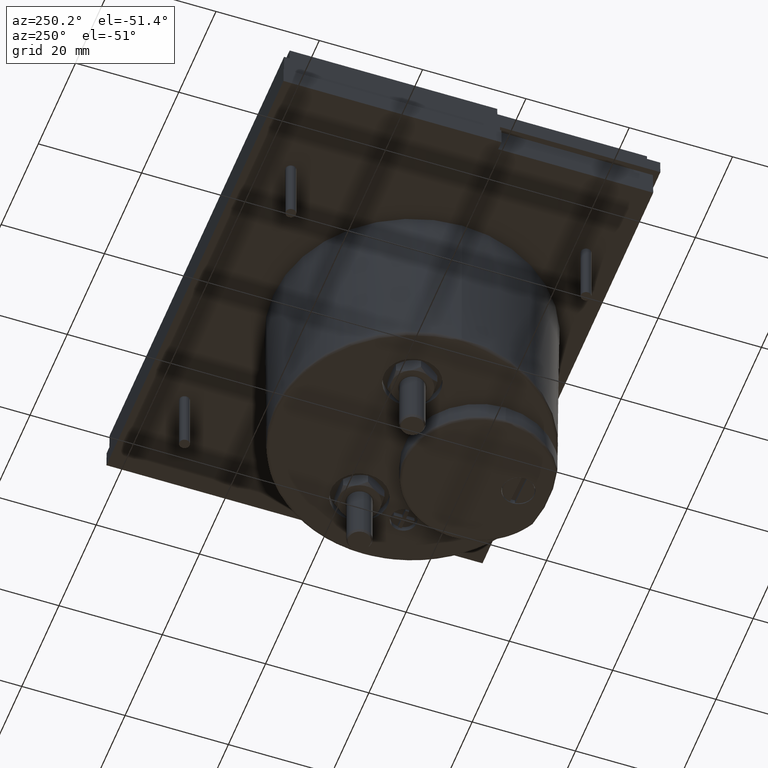
[diagram: clean part render]
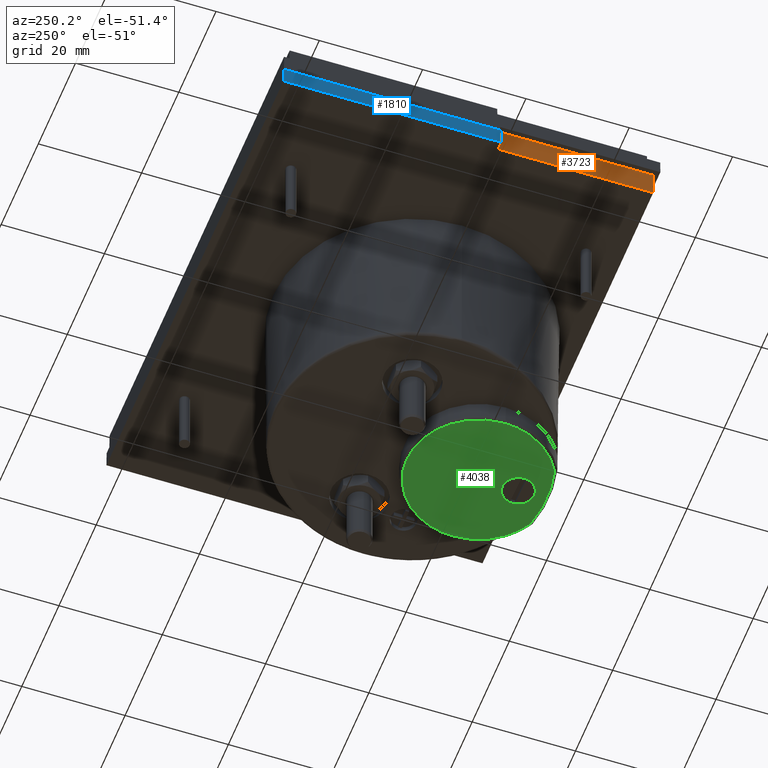
[diagram: same view with three faces highlighted in distinct colors, each labeled with its STEP entity id]
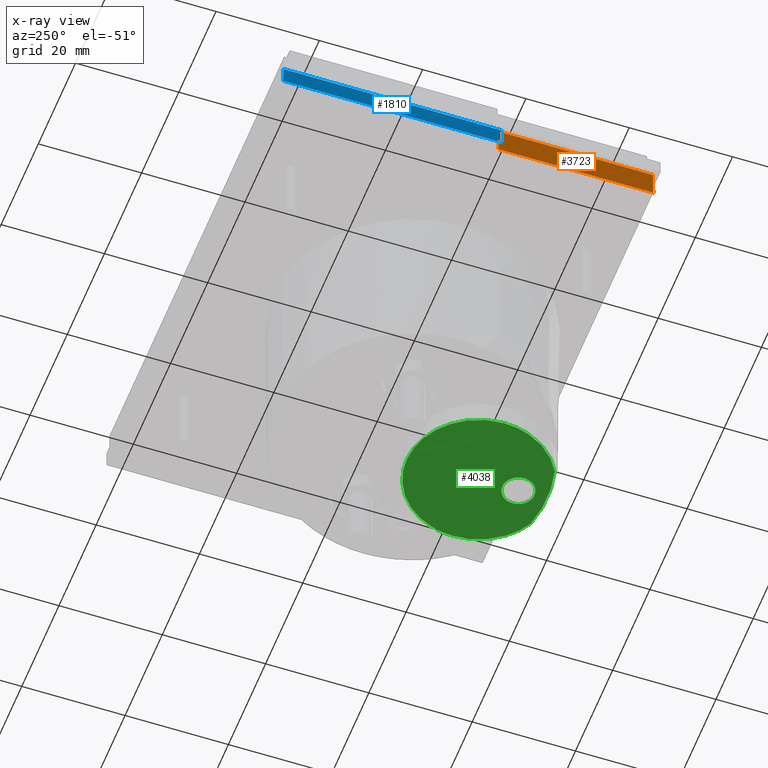
[diagram: x-ray of the same camera — body ghosted, the three highlighted faces saturated]
A machine part, auxiliary view with three faces highlighted in distinct colors.
The next image is the same camera in x-ray (body ghosted, the three faces saturated) — at least one of them is partly hidden behind the body in this view.
Their STEP definitions:

[orange] entity #3723 — the highlighted planar face has unit normal (-1, 0, 0.0087).
#330 = ORIENTED_EDGE ( 'NONE', *, *, #2643, .T. ) ;
#435 = CARTESIAN_POINT ( 'NONE',  ( -1.234437305360864379, 0.3109463270555614112, 0.3716535433070870531 ) ) ;
#437 = CARTESIAN_POINT ( 'NONE',  ( -1.236220472440944906, -0.8719392022292440370, 0.1673228346456696880 ) ) ;
#581 = ORIENTED_EDGE ( 'NONE', *, *, #2721, .F. ) ;
#834 = ORIENTED_EDGE ( 'NONE', *, *, #2468, .T. ) ;
#843 = VECTOR ( 'NONE', #3497, 39.37007874015748143 ) ;
#1020 = VECTOR ( 'NONE', #3232, 39.37007874015748854 ) ;
#1339 = EDGE_CURVE ( 'NONE', #1453, #1769, #3308, .T. ) ;
#1453 = VERTEX_POINT ( 'NONE', #2942 ) ;
#1742 = DIRECTION ( 'NONE',  ( 0.000000000000000000, 1.000000000000000000, -0.000000000000000000 ) ) ;
#1761 = VERTEX_POINT ( 'NONE', #2123 ) ;
#1769 = VERTEX_POINT ( 'NONE', #3302 ) ;
#1962 = CARTESIAN_POINT ( 'NONE',  ( -1.236220472440944906, -0.8719392022292440370, 0.1673228346456696047 ) ) ;
#2035 = DIRECTION ( 'NONE',  ( -0.9999619230641713097, 0.000000000000000000, 0.008726535498373936411 ) ) ;
#2123 = CARTESIAN_POINT ( 'NONE',  ( -1.236220472440944906, 0.3091631599754814941, 0.1673228346456695770 ) ) ;
#2438 = ORIENTED_EDGE ( 'NONE', *, *, #1339, .T. ) ;
#2468 = EDGE_CURVE ( 'NONE', #1769, #1761, #4807, .T. ) ;
#2607 = DIRECTION ( 'NONE',  ( 0.008726203243944826229, 0.008726203243956190403, 0.9999238504775703751 ) ) ;
#2643 = EDGE_CURVE ( 'NONE', #4791, #1453, #3338, .T. ) ;
#2682 = CARTESIAN_POINT ( 'NONE',  ( -1.236220472440944906, -1.034340777032393577, 0.1673228346456692994 ) ) ;
#2721 = EDGE_CURVE ( 'NONE', #4791, #1761, #3583, .T. ) ;
#2729 = VECTOR ( 'NONE', #1742, 39.37007874015748143 ) ;
#2792 = FACE_OUTER_BOUND ( 'NONE', #2798, .T. ) ;
#2798 = EDGE_LOOP ( 'NONE', ( #581, #330, #2438, #834 ) ) ;
#2866 = CARTESIAN_POINT ( 'NONE',  ( -1.234437305360864379, -0.8719392022292440370, 0.3716535433070870531 ) ) ;
#2921 = CARTESIAN_POINT ( 'NONE',  ( -1.236220472440944906, -0.8719392022292440370, 0.1673228346456696880 ) ) ;
#2942 = CARTESIAN_POINT ( 'NONE',  ( -1.234437305360866155, -0.8701560351491619549, 0.3716535433070870531 ) ) ;
#3109 = PLANE ( 'NONE',  #4185 ) ;
#3232 = DIRECTION ( 'NONE',  ( -0.008726203243944827964, -0.008726203243942822624, -0.9999238504775703751 ) ) ;
#3302 = CARTESIAN_POINT ( 'NONE',  ( -1.234437305360866155, 0.3109463270555615222, 0.3716535433070870531 ) ) ;
#3308 = LINE ( 'NONE', #2866, #2729 ) ;
#3338 = LINE ( 'NONE', #2921, #4526 ) ;
#3497 = DIRECTION ( 'NONE',  ( 0.000000000000000000, 1.000000000000000000, 0.000000000000000000 ) ) ;
#3583 = LINE ( 'NONE', #2682, #843 ) ;
#3723 = ADVANCED_FACE ( 'NONE', ( #2792 ), #3109, .T. ) ;
#4185 = AXIS2_PLACEMENT_3D ( 'NONE', #437, #2035, #4782 ) ;
#4526 = VECTOR ( 'NONE', #2607, 39.37007874015748143 ) ;
#4782 = DIRECTION ( 'NONE',  ( 0.008726535498373934677, 0.000000000000000000, 0.9999619230641711987 ) ) ;
#4791 = VERTEX_POINT ( 'NONE', #1962 ) ;
#4807 = LINE ( 'NONE', #435, #1020 ) ;

[blue] entity #1810 — the highlighted planar face has unit normal (-1, 0, 0.0087).
#61 = DIRECTION ( 'NONE',  ( 0.000000000000000000, 1.000000000000000000, 0.000000000000000000 ) ) ;
#234 = ORIENTED_EDGE ( 'NONE', *, *, #1017, .T. ) ;
#349 = AXIS2_PLACEMENT_3D ( 'NONE', #4517, #1626, #1814 ) ;
#482 = CARTESIAN_POINT ( 'NONE',  ( -1.303149606299212726, -1.034340777032393577, 0.1673228346456692994 ) ) ;
#527 = PLANE ( 'NONE',  #349 ) ;
#628 = CARTESIAN_POINT ( 'NONE',  ( -1.303149606299212726, 1.970580482810126322, 0.1673228346456696047 ) ) ;
#735 = CARTESIAN_POINT ( 'NONE',  ( -1.303149606299212726, 1.970580482810125877, 0.1673228346456696880 ) ) ;
#862 = LINE ( 'NONE', #1287, #4300 ) ;
#933 = EDGE_LOOP ( 'NONE', ( #1157, #3229, #234, #5145 ) ) ;
#1017 = EDGE_CURVE ( 'NONE', #3616, #4689, #862, .T. ) ;
#1157 = ORIENTED_EDGE ( 'NONE', *, *, #4253, .F. ) ;
#1275 = LINE ( 'NONE', #482, #2619 ) ;
#1287 = CARTESIAN_POINT ( 'NONE',  ( -1.301947085146943017, -0.8719392022292440370, 0.3051181102362208741 ) ) ;
#1301 = LINE ( 'NONE', #4055, #3315 ) ;
#1375 = EDGE_CURVE ( 'NONE', #4553, #3616, #1301, .T. ) ;
#1421 = CARTESIAN_POINT ( 'NONE',  ( -1.303149606299212726, 0.3091631599754815496, 0.1673228346456695770 ) ) ;
#1626 = DIRECTION ( 'NONE',  ( -0.9999619230641713097, 0.000000000000000000, 0.008726535498373936411 ) ) ;
#1810 = ADVANCED_FACE ( 'NONE', ( #4098 ), #527, .T. ) ;
#1814 = DIRECTION ( 'NONE',  ( 0.008726535498373934677, 0.000000000000000000, 0.9999619230641711987 ) ) ;
#2098 = VECTOR ( 'NONE', #2327, 39.37007874015748143 ) ;
#2327 = DIRECTION ( 'NONE',  ( 0.008726203243930022099, -0.008726203243943899887, 0.9999238504775705971 ) ) ;
#2619 = VECTOR ( 'NONE', #61, 39.37007874015748143 ) ;
#3088 = CARTESIAN_POINT ( 'NONE',  ( -1.301947085146943683, 1.969377961657857501, 0.3051181102362208741 ) ) ;
#3229 = ORIENTED_EDGE ( 'NONE', *, *, #1375, .T. ) ;
#3315 = VECTOR ( 'NONE', #4442, 39.37007874015748854 ) ;
#3616 = VERTEX_POINT ( 'NONE', #3840 ) ;
#3840 = CARTESIAN_POINT ( 'NONE',  ( -1.301947085146944350, 0.3103656811277513139, 0.3051181102362208741 ) ) ;
#4055 = CARTESIAN_POINT ( 'NONE',  ( -1.303149606299212726, 0.3091631599754814386, 0.1673228346456696880 ) ) ;
#4098 = FACE_OUTER_BOUND ( 'NONE', #933, .T. ) ;
#4253 = EDGE_CURVE ( 'NONE', #4553, #5019, #1275, .T. ) ;
#4300 = VECTOR ( 'NONE', #4371, 39.37007874015748143 ) ;
#4371 = DIRECTION ( 'NONE',  ( 0.000000000000000000, 1.000000000000000000, -0.000000000000000000 ) ) ;
#4442 = DIRECTION ( 'NONE',  ( 0.008726203243943896418, 0.008726203243943896418, 0.9999238504775703751 ) ) ;
#4517 = CARTESIAN_POINT ( 'NONE',  ( -1.303149606299212726, -0.8719392022292440370, 0.1673228346456696880 ) ) ;
#4553 = VERTEX_POINT ( 'NONE', #1421 ) ;
#4689 = VERTEX_POINT ( 'NONE', #3088 ) ;
#4696 = LINE ( 'NONE', #735, #2098 ) ;
#4783 = EDGE_CURVE ( 'NONE', #5019, #4689, #4696, .T. ) ;
#5019 = VERTEX_POINT ( 'NONE', #628 ) ;
#5145 = ORIENTED_EDGE ( 'NONE', *, *, #4783, .F. ) ;

[green] entity #4038 — the highlighted planar face has unit normal (0, 0, -1).
#1 = CARTESIAN_POINT ( 'NONE',  ( 0.9384770271147976350, -0.6015589091546050815, -1.289370078740158077 ) ) ;
#4 = CARTESIAN_POINT ( 'NONE',  ( 0.8446700520949257385, 0.2835141530638262131, -1.289370078740157188 ) ) ;
#26 = B_SPLINE_CURVE_WITH_KNOTS ( 'NONE', 3,
 ( #276, #2289, #1874, #3076, #4653, #1092, #4267, #3881, #1896, #324, #2736, #4335, #3924, #3125, #3543, #376, #4746, #3586, #4384, #1166, #768, #1, #3978, #350, #3495, #4288, #1508, #3166, #4705, #3147 ),
 .UNSPECIFIED., .F., .F.,
 ( 4, 2, 2, 2, 2, 2, 2, 2, 1, 2, 2, 1, 1, 2, 2, 1, 4 ),
 ( 0.7970566506359434422, 0.8097406099711970118, 0.8224245693064506924, 0.8477924879769579425, 0.8731604066474651926, 0.8985283253179724428, 0.9048703049855991720, 0.9112122846532260123, 0.9238962439884795819, 0.9365802033237331514, 0.9429221829913598807, 0.9492641626589867210, 0.9619481219942404016, 0.9682901016618670198, 0.9714610914956804955, 0.9746320813294937491, 1.000000000000000000 ),
 .UNSPECIFIED. ) ;
#34 = CARTESIAN_POINT ( 'NONE',  ( 0.5536477415797694812, 0.3565063602400492804, -1.289370078740157632 ) ) ;
#60 = CARTESIAN_POINT ( 'NONE',  ( 0.2058429360555917575, 0.2181521921886200865, -1.289370078740157188 ) ) ;
#80 = EDGE_CURVE ( 'NONE', #1165, #1895, #26, .T. ) ;
#85 = CARTESIAN_POINT ( 'NONE',  ( 0.6138585538189371693, 0.3552978159064286157, -1.289370078740157632 ) ) ;
#115 = CARTESIAN_POINT ( 'NONE',  ( 0.2347109786648297336, 0.2420717581687857056, -1.289370078740157632 ) ) ;
#163 = CARTESIAN_POINT ( 'NONE',  ( 1.093258676701229115, -0.02183562454234733163, -1.289370078740157854 ) ) ;
#195 = CARTESIAN_POINT ( 'NONE',  ( 1.078100607776036446, 0.01826384591821846037, -1.289370078740157854 ) ) ;
#219 = CARTESIAN_POINT ( 'NONE',  ( 1.118460136318124576, -0.1481039795264723347, -1.289370078740157854 ) ) ;
#236 = CARTESIAN_POINT ( 'NONE',  ( 0.5708661417322835607, -0.4948132179772756767, -1.289370078740157632 ) ) ;
#245 = CARTESIAN_POINT ( 'NONE',  ( 1.069148497400037812, 0.03886025930498913233, -1.289370078740157854 ) ) ;
#276 = CARTESIAN_POINT ( 'NONE',  ( 1.120287799306627807, -0.1929133858972249260, -1.289370078740157632 ) ) ;
#294 = CARTESIAN_POINT ( 'NONE',  ( 0.2507944338379105575, -0.6394840072766357908, -1.289370078740157188 ) ) ;
#305 = CARTESIAN_POINT ( 'NONE',  ( 0.5708661417322835607, 0.3150293017077653857, -1.289370078740157632 ) ) ;
#318 = CARTESIAN_POINT ( 'NONE',  ( 0.2723426865721074730, -0.6548433812009808452, -1.289370078740157188 ) ) ;
#324 = CARTESIAN_POINT ( 'NONE',  ( 1.063776425485601029, -0.4369594472126592244, -1.289370078740157854 ) ) ;
#350 = CARTESIAN_POINT ( 'NONE',  ( 0.9053819200067143580, -0.6288022985941136289, -1.289370078740156966 ) ) ;
#371 = CARTESIAN_POINT ( 'NONE',  ( 0.04876521637937433068, -0.3659241067477672638, -1.289370078740157632 ) ) ;
#376 = CARTESIAN_POINT ( 'NONE',  ( 1.009924715533655926, -0.5234465222731520262, -1.289370078740157632 ) ) ;
#379 = FACE_OUTER_BOUND ( 'NONE', #3329, .T. ) ;
#425 = CARTESIAN_POINT ( 'NONE',  ( 0.4763933368728351381, 0.3483420782840588870, -1.289370078740157188 ) ) ;
#453 = CARTESIAN_POINT ( 'NONE',  ( 0.3982733096025022346, 0.3286990507984998700, -1.289370078740157854 ) ) ;
#481 = CARTESIAN_POINT ( 'NONE',  ( 0.07258531467889857425, 0.03886533251616468287, -1.289370078740158077 ) ) ;
#498 = EDGE_CURVE ( 'NONE', #2129, #1228, #2887, .T. ) ;
#507 = CARTESIAN_POINT ( 'NONE',  ( 0.6394798927376228459, 0.3522741316548451684, -1.289370078740157188 ) ) ;
#518 = CARTESIAN_POINT ( 'NONE',  ( 0.3157583286243963450, -0.6795163172846532262, -1.289370078740157632 ) ) ;
#537 = CARTESIAN_POINT ( 'NONE',  ( 1.102932032615465685, -0.05484165428587069180, -1.289370078740157188 ) ) ;
#561 = CARTESIAN_POINT ( 'NONE',  ( 1.087656100762896427, -0.005591958704826717128, -1.289370078740156966 ) ) ;
#578 = CARTESIAN_POINT ( 'NONE',  ( 0.8259739548401733300, -0.6795163172846498956, -1.289370078740157632 ) ) ;
#584 = CARTESIAN_POINT ( 'NONE',  ( 1.118091650515456337, -0.1438093743668213131, -1.289370078740157632 ) ) ;
#615 = CARTESIAN_POINT ( 'NONE',  ( 0.9496638681739641985, 0.2054959087354074065, -1.289370078740157632 ) ) ;
#640 = CARTESIAN_POINT ( 'NONE',  ( 0.9758032228436134270, 0.1785341338603482764, -1.289370078740157188 ) ) ;
#679 = AXIS2_PLACEMENT_3D ( 'NONE', #1084, #2670, #2571 ) ;
#688 = CARTESIAN_POINT ( 'NONE',  ( 0.08984437790886941333, -0.4596356228690697820, -1.289370078740157632 ) ) ;
#713 = CARTESIAN_POINT ( 'NONE',  ( 0.02986782775092728173, -0.2920304841795585138, -1.289370078740156966 ) ) ;
#768 = CARTESIAN_POINT ( 'NONE',  ( 0.9517823010094962344, -0.5888995488856916261, -1.289370078740157188 ) ) ;
#769 = CARTESIAN_POINT ( 'NONE',  ( 0.02144449346193376751, -0.1929133857769724236, -1.289370078740157632 ) ) ;
#804 = VERTEX_POINT ( 'NONE', #5031 ) ;
#822 = CARTESIAN_POINT ( 'NONE',  ( 0.04847231247042282920, -0.02183941364100049076, -1.289370078740157854 ) ) ;
#847 = CARTESIAN_POINT ( 'NONE',  ( 0.6874313634905008241, 0.3443953387375221498, -1.289370078740157854 ) ) ;
#876 = CARTESIAN_POINT ( 'NONE',  ( 0.3053372654969793154, 0.2881705574389827884, -1.289370078740157854 ) ) ;
#904 = CARTESIAN_POINT ( 'NONE',  ( 0.7434807734154055270, 0.3286916904834640829, -1.289370078740157632 ) ) ;
#929 = CARTESIAN_POINT ( 'NONE',  ( 0.5364552890716349776, 0.3557003448688131342, -1.289370078740157854 ) ) ;
#961 = CARTESIAN_POINT ( 'NONE',  ( 0.9358891972319803854, 0.2181530740550871594, -1.289370078740157188 ) ) ;
#1084 = CARTESIAN_POINT ( 'NONE',  ( 0.5708661417322835607, -0.4948132179772756767, -1.289370078740157632 ) ) ;
#1092 = CARTESIAN_POINT ( 'NONE',  ( 1.111865468189436212, -0.2920224497715718237, -1.289370078740157632 ) ) ;
#1114 = CARTESIAN_POINT ( 'NONE',  ( 0.2363525904464926775, -0.6288046026872021743, -1.289370078740157854 ) ) ;
#1138 = CARTESIAN_POINT ( 'NONE',  ( 0.1769805548771476722, -0.5760010322203289457, -1.289370078740157188 ) ) ;
#1165 = VERTEX_POINT ( 'NONE', #4241 ) ;
#1166 = CARTESIAN_POINT ( 'NONE',  ( 0.9605158524045990243, -0.5803069675161077745, -1.289370078740157854 ) ) ;
#1217 = CARTESIAN_POINT ( 'NONE',  ( 0.02818936416748049970, -0.1053715552896150459, -1.289370078740157632 ) ) ;
#1228 = VERTEX_POINT ( 'NONE', #769 ) ;
#1244 = CARTESIAN_POINT ( 'NONE',  ( 0.06364078453472603314, 0.01828516926230199652, -1.289370078740157854 ) ) ;
#1272 = CARTESIAN_POINT ( 'NONE',  ( 0.1723890041996742339, 0.1854613919272131151, -1.289370078740157854 ) ) ;
#1302 = CARTESIAN_POINT ( 'NONE',  ( 0.02364190035784229094, -0.1437926155816775797, -1.289370078740157854 ) ) ;
#1329 = CARTESIAN_POINT ( 'NONE',  ( 0.6653526802207967439, 0.3483401721078821511, -1.289370078740157854 ) ) ;
#1387 = ORIENTED_EDGE ( 'NONE', *, *, #4667, .T. ) ;
#1395 = DIRECTION ( 'NONE',  ( 0.000000000000000000, 0.000000000000000000, 1.000000000000000000 ) ) ;
#1456 = CARTESIAN_POINT ( 'NONE',  ( 0.9693499411251804698, 0.1854533830524907057, -1.289370078740157632 ) ) ;
#1508 = CARTESIAN_POINT ( 'NONE',  ( 0.8909396921280304804, -0.6394834630480847881, -1.289370078740157854 ) ) ;
#1542 = CARTESIAN_POINT ( 'NONE',  ( 0.6929133858267717549, -0.4948132179772756767, -1.289370078740157632 ) ) ;
#1595 = CARTESIAN_POINT ( 'NONE',  ( 0.02185281653024187878, -0.2173876517386032770, -1.289370078740158077 ) ) ;
#1609 = CARTESIAN_POINT ( 'NONE',  ( 0.1920666951023801972, 0.2054945735019871600, -1.289370078740157854 ) ) ;
#1635 = CARTESIAN_POINT ( 'NONE',  ( 0.03472765303207901721, -0.07161302208091763211, -1.289370078740157632 ) ) ;
#1660 = CARTESIAN_POINT ( 'NONE',  ( 0.7478635193740335030, 0.3272210274411005981, -1.289370078740157632 ) ) ;
#1688 = CARTESIAN_POINT ( 'NONE',  ( 0.06716001113006513090, 0.02654746571363199650, -1.289370078740157188 ) ) ;
#1718 = CARTESIAN_POINT ( 'NONE',  ( 0.09995183966056461755, 0.09025253796630129666, -1.289370078740157632 ) ) ;
#1766 = CARTESIAN_POINT ( 'NONE',  ( 1.113542173744333841, -0.1053675864706292292, -1.289370078740156966 ) ) ;
#1797 = CARTESIAN_POINT ( 'NONE',  ( 0.9070386107323316072, 0.2420583677565848746, -1.289370078740157854 ) ) ;
#1872 = EDGE_CURVE ( 'NONE', #804, #2312, #4015, .T. ) ;
#1874 = CARTESIAN_POINT ( 'NONE',  ( 1.119878583350719214, -0.2173915997547154477, -1.289370078740157632 ) ) ;
#1892 = CARTESIAN_POINT ( 'NONE',  ( 0.2460309414043914400, -0.6360308203093609780, -1.289370078740157188 ) ) ;
#1895 = VERTEX_POINT ( 'NONE', #578 ) ;
#1896 = CARTESIAN_POINT ( 'NONE',  ( 1.084367755432692260, -0.3899849651578404797, -1.289370078740157632 ) ) ;
#1943 = CARTESIAN_POINT ( 'NONE',  ( 0.2218268718828025066, -0.6175303961234366312, -1.289370078740157632 ) ) ;
#1965 = CARTESIAN_POINT ( 'NONE',  ( 0.1471980704590830913, -0.5434122521167240594, -1.289370078740157632 ) ) ;
#1968 = EDGE_CURVE ( 'NONE', #2129, #1895, #2168, .T. ) ;
#1976 = DIRECTION ( 'NONE',  ( 0.000000000000000000, 0.000000000000000000, -1.000000000000000000 ) ) ;
#1997 = CARTESIAN_POINT ( 'NONE',  ( 0.5022577436430898379, 0.3522755063787981200, -1.289370078740157854 ) ) ;
#2005 = ORIENTED_EDGE ( 'NONE', *, *, #498, .T. ) ;
#2026 = CARTESIAN_POINT ( 'NONE',  ( 0.7413939337929226214, 0.3293773899214528789, -1.289370078740157188 ) ) ;
#2050 = CARTESIAN_POINT ( 'NONE',  ( 0.1659456131804798174, 0.1785526553382265624, -1.289370078740157854 ) ) ;
#2077 = CARTESIAN_POINT ( 'NONE',  ( 0.1045901535392746440, 0.09783393342143006932, -1.289370078740157188 ) ) ;
#2105 = CARTESIAN_POINT ( 'NONE',  ( 0.8119004908181997049, 0.3011585924546500426, -1.289370078740157632 ) ) ;
#2129 = VERTEX_POINT ( 'NONE', #518 ) ;
#2134 = CARTESIAN_POINT ( 'NONE',  ( 1.118642228209612233, -0.1503813539454759429, -1.289370078740157632 ) ) ;
#2158 = CARTESIAN_POINT ( 'NONE',  ( 1.022085093817478141, 0.1211034877315422809, -1.289370078740157632 ) ) ;
#2168 =( BOUNDED_CURVE ( )  B_SPLINE_CURVE ( 3, ( #3872, #4352, #2277, #4664 ),
 .UNSPECIFIED., .F., .T. ) 
 B_SPLINE_CURVE_WITH_KNOTS ( ( 4, 4 ),
 ( 0.000000000000000000, 1.000000000000000000 ),
 .UNSPECIFIED. ) 
 CURVE ( )  GEOMETRIC_REPRESENTATION_ITEM ( )  RATIONAL_B_SPLINE_CURVE ( ( 1.000000000000000000, 0.9790942264206219381, 0.9790942264206219381, 1.000000000000000000 ) ) 
 REPRESENTATION_ITEM ( '' )  );
#2236 = CARTESIAN_POINT ( 'NONE',  ( 1.005906898988500719, 0.1435432101310638309, -1.289370078740158077 ) ) ;
#2277 = CARTESIAN_POINT ( 'NONE',  ( 0.6577177801220903675, -0.7226751869780462245, -1.289370078740157632 ) ) ;
#2284 = CARTESIAN_POINT ( 'NONE',  ( 0.02349359254682247336, -0.2418562392371146619, -1.289370078740157854 ) ) ;
#2289 = CARTESIAN_POINT ( 'NONE',  ( 1.120289119710964343, -0.2051511616568569285, -1.289370078740157854 ) ) ;
#2295 = FACE_BOUND ( 'NONE', #4440, .T. ) ;
#2312 = VERTEX_POINT ( 'NONE', #1542 ) ;
#2331 = CARTESIAN_POINT ( 'NONE',  ( 0.07794513476457759493, -0.4369336602152552596, -1.289370078740157854 ) ) ;
#2358 = CARTESIAN_POINT ( 'NONE',  ( 0.2949037703565496882, -0.6685830482698082999, -1.289370078740157632 ) ) ;
#2381 = CARTESIAN_POINT ( 'NONE',  ( 0.03493419507844051919, -0.3165811705576749291, -1.289370078740157854 ) ) ;
#2390 = CARTESIAN_POINT ( 'NONE',  ( 0.02309166873537641870, -0.1503635016525699808, -1.289370078740157854 ) ) ;
#2414 = CARTESIAN_POINT ( 'NONE',  ( 0.1196479894378429804, 0.1211059712132813160, -1.289370078740157632 ) ) ;
#2444 = CARTESIAN_POINT ( 'NONE',  ( 0.02541017225331513446, -0.1245023975578363334, -1.289370078740157632 ) ) ;
#2469 = CARTESIAN_POINT ( 'NONE',  ( 0.1358228061872819303, 0.1435394484014979044, -1.289370078740157632 ) ) ;
#2499 = CARTESIAN_POINT ( 'NONE',  ( 0.02327391203585307475, -0.1480832659019292175, -1.289370078740157854 ) ) ;
#2526 = CARTESIAN_POINT ( 'NONE',  ( 0.8364186522027478032, 0.2881581035733429830, -1.289370078740157632 ) ) ;
#2548 = ORIENTED_EDGE ( 'NONE', *, *, #1968, .F. ) ;
#2571 = DIRECTION ( 'NONE',  ( 1.000000000000000000, 0.000000000000000000, 0.000000000000000000 ) ) ;
#2577 = CARTESIAN_POINT ( 'NONE',  ( 1.041786151061498078, 0.09024425122232923591, -1.289370078740157188 ) ) ;
#2599 = CARTESIAN_POINT ( 'NONE',  ( 0.8919660967062700285, 0.2533039852263493374, -1.289370078740157188 ) ) ;
#2654 = CARTESIAN_POINT ( 'NONE',  ( 1.059371249148313820, 0.05901921890196847043, -1.289370078740157188 ) ) ;
#2670 = DIRECTION ( 'NONE',  ( 0.000000000000000000, 0.000000000000000000, 1.000000000000000000 ) ) ;
#2675 = CARTESIAN_POINT ( 'NONE',  ( 0.2032688650339923575, -0.6015709442248297067, -1.289370078740157632 ) ) ;
#2705 = CARTESIAN_POINT ( 'NONE',  ( 0.1899575733244675269, -0.5889059729406841415, -1.289370078740157632 ) ) ;
#2728 = CARTESIAN_POINT ( 'NONE',  ( 0.1318138756758955588, -0.5234538129476556945, -1.289370078740157632 ) ) ;
#2736 = CARTESIAN_POINT ( 'NONE',  ( 1.051895293261822628, -0.4596223991723345503, -1.289370078740157632 ) ) ;
#2785 = CARTESIAN_POINT ( 'NONE',  ( 0.02177288140685513726, -0.1705211909787635038, -1.289370078740157854 ) ) ;
#2811 = CARTESIAN_POINT ( 'NONE',  ( 0.1536730942130265509, 0.1647150846842619920, -1.289370078740157188 ) ) ;
#2836 = CARTESIAN_POINT ( 'NONE',  ( 0.3938868013388214240, 0.3272269624827530143, -1.289370078740157632 ) ) ;
#2868 = CARTESIAN_POINT ( 'NONE',  ( 0.2970705858957469192, 0.2835181355567787942, -1.289370078740158743 ) ) ;
#2887 = B_SPLINE_CURVE_WITH_KNOTS ( 'NONE', 3,
 ( #4283, #2358, #318, #294, #1892, #4699, #1114, #1943, #2675, #2705, #3537, #1138, #3162, #1965, #2728, #5063, #3900, #4256, #3092, #688, #2331, #3949, #371, #2381, #713, #5134, #2284, #1595, #3511, #4307 ),
 .UNSPECIFIED., .F., .F.,
 ( 4, 1, 2, 2, 1, 1, 2, 2, 1, 2, 2, 2, 2, 2, 2, 2, 4 ),
 ( 0.000000000000000000, 0.02536881410118544539, 0.02853991586383362866, 0.03171101762648181194, 0.03805322115177809522, 0.05073762820237062016, 0.05707983172766689650, 0.06342203525296317979, 0.07610644230355580186, 0.08879084935414839619, 0.09513305287944469335, 0.1014752564047409905, 0.1268440705059259710, 0.1522128846071109654, 0.1775816987082959597, 0.1902661057588884985, 0.2029505128094809818 ),
 .UNSPECIFIED. ) ;
#2892 = CARTESIAN_POINT ( 'NONE',  ( 0.6564956289259339384, 0.3498112481422401276, -1.289370078740157632 ) ) ;
#2917 = CARTESIAN_POINT ( 'NONE',  ( 0.3298347979579810407, 0.3011609854167419664, -1.289370078740157854 ) ) ;
#2964 = B_SPLINE_CURVE_WITH_KNOTS ( 'NONE', 3,
 ( #3168, #4749, #2785, #4362, #2390, #2499, #1302, #2444, #1217, #1635, #4111, #822, #4031, #4826, #1244, #1688, #481, #4080, #3309, #1718, #2077, #2414, #2469, #2811, #2050, #1272, #1609, #60, #115, #3620, #3702, #4496, #2868, #876, #2917, #4056, #4443, #2836, #453, #3287, #3672, #4803, #4858, #425, #4002, #3200, #1997, #4412, #929, #34, #4884, #85, #507, #3647, #2892, #1329, #847, #3588, #4471, #2026, #904, #1660, #3253, #3227, #2105, #2526, #4, #4777, #4386, #2599, #1797, #961, #615, #1456, #640, #4184, #2236, #2158, #3727, #2577, #4133, #2654, #245, #3047, #195, #3389, #561, #163, #537, #4157, #1766, #4961, #584, #219, #2134, #3417, #4987, #3747, #4550 ),
 .UNSPECIFIED., .F., .F.,
 ( 4, 1, 2, 2, 1, 2, 2, 2, 2, 1, 1, 2, 2, 1, 2, 2, 2, 2, 2, 2, 1, 1, 2, 2, 1, 1, 2, 2, 2, 2, 1, 2, 2, 1, 1, 2, 2, 1, 1, 2, 2, 2, 2, 2, 2, 1, 2, 2, 1, 1, 2, 2, 2, 2, 1, 2, 2, 1, 4 ),
 ( 0.2029505128094809818, 0.2122334212130194409, 0.2168748754147886704, 0.2191956025156732990, 0.2215163296165579276, 0.2400821464236349290, 0.2586479632307119303, 0.2772137800377889039, 0.2818552342395581611, 0.2864966884413274184, 0.2957795968448658774, 0.3050625052484043920, 0.3143454136519428510, 0.3329112304590198246, 0.3421941388625583391, 0.3514770472660968537, 0.3700428640731738827, 0.3886086808802509118, 0.3978915892837894264, 0.4071744976873279409, 0.4257403144944049700, 0.4350232228979434845, 0.4373439499988281409, 0.4396646770997127973, 0.4443061313014819991, 0.4628719481085591392, 0.4675134023103284520, 0.4721548565120977647, 0.4814377649156363903, 0.5000035817227135304, 0.5185693985297906705, 0.5278523069333291851, 0.5324937611350984978, 0.5371352153368676996, 0.5557010321439445066, 0.5603424863457135974, 0.5626632134465981983, 0.5649839405474827991, 0.5742668489510213137, 0.5928326657580980097, 0.6021155741616364132, 0.6113984825651748167, 0.6299642993722515127, 0.6485301161793283198, 0.6578130245828667233, 0.6670959329864051268, 0.6856617497934819339, 0.6949446581970203374, 0.7042275666005586299, 0.7135104750040970334, 0.7181519292058662352, 0.7227933834076355479, 0.7413592002147124660, 0.7599250170217894951, 0.7784908338288665242, 0.7808115609297510140, 0.7831322880306356149, 0.7877737422324049277, 0.7970566506359434422 ),
 .UNSPECIFIED. ) ;
#3047 = CARTESIAN_POINT ( 'NONE',  ( 1.074578008652158800, 0.02653329036397102450, -1.289370078740157632 ) ) ;
#3076 = CARTESIAN_POINT ( 'NONE',  ( 1.118236979724389180, -0.2418778006268859082, -1.289370078740157632 ) ) ;
#3092 = CARTESIAN_POINT ( 'NONE',  ( 0.1066372167767258294, -0.4868464822094968891, -1.289370078740157632 ) ) ;
#3102 = PLANE ( 'NONE',  #3190 ) ;
#3125 = CARTESIAN_POINT ( 'NONE',  ( 1.024525826094761172, -0.5029073210799764881, -1.289370078740157188 ) ) ;
#3147 = CARTESIAN_POINT ( 'NONE',  ( 0.8259739548401733300, -0.6795163172846498956, -1.289370078740157632 ) ) ;
#3162 = CARTESIAN_POINT ( 'NONE',  ( 0.1639282151469700355, -0.5622702261364913578, -1.289370078740157854 ) ) ;
#3166 = CARTESIAN_POINT ( 'NONE',  ( 0.8694004435646256468, -0.6548378296467466386, -1.289370078740157188 ) ) ;
#3168 = CARTESIAN_POINT ( 'NONE',  ( 0.02144449346193376751, -0.1929133857769724236, -1.289370078740157632 ) ) ;
#3190 = AXIS2_PLACEMENT_3D ( 'NONE', #305, #1976, #3520 ) ;
#3200 = CARTESIAN_POINT ( 'NONE',  ( 0.4894787510713555778, 0.3504624558336362217, -1.289370078740157188 ) ) ;
#3210 = EDGE_CURVE ( 'NONE', #1228, #1165, #2964, .T. ) ;
#3227 = CARTESIAN_POINT ( 'NONE',  ( 0.7868351557821997577, 0.3128740011429955170, -1.289370078740157854 ) ) ;
#3253 = CARTESIAN_POINT ( 'NONE',  ( 0.7587918856429234360, 0.3234774385751408854, -1.289370078740157632 ) ) ;
#3287 = CARTESIAN_POINT ( 'NONE',  ( 0.4003546496058583148, 0.3293829873314207957, -1.289370078740157632 ) ) ;
#3309 = CARTESIAN_POINT ( 'NONE',  ( 0.09096053772555519334, 0.07473565005647107851, -1.289370078740157632 ) ) ;
#3329 = EDGE_LOOP ( 'NONE', ( #2005, #4242, #4902, #2548 ) ) ;
#3358 = AXIS2_PLACEMENT_3D ( 'NONE', #236, #1395, #3432 ) ;
#3389 = CARTESIAN_POINT ( 'NONE',  ( 1.079695508363462952, 0.01438843729927354910, -1.289370078740157632 ) ) ;
#3417 = CARTESIAN_POINT ( 'NONE',  ( 1.119136510762298364, -0.1570954181145410578, -1.289370078740157854 ) ) ;
#3432 = DIRECTION ( 'NONE',  ( 1.000000000000000000, 0.000000000000000000, 0.000000000000000000 ) ) ;
#3495 = CARTESIAN_POINT ( 'NONE',  ( 0.8980119692522069430, -0.6343286874794524799, -1.289370078740157188 ) ) ;
#3511 = CARTESIAN_POINT ( 'NONE',  ( 0.02144271883548662036, -0.2051514651683076784, -1.289370078740157632 ) ) ;
#3520 = DIRECTION ( 'NONE',  ( -1.000000000000000000, 0.000000000000000000, -0.000000000000000000 ) ) ;
#3537 = CARTESIAN_POINT ( 'NONE',  ( 0.1812183151685803073, -0.5803081293378780092, -1.289370078740157188 ) ) ;
#3543 = CARTESIAN_POINT ( 'NONE',  ( 1.020950838145373574, -0.5080745892476754566, -1.289370078740157188 ) ) ;
#3586 = CARTESIAN_POINT ( 'NONE',  ( 0.9778073240815789990, -0.5622655597759810275, -1.289370078740157854 ) ) ;
#3588 = CARTESIAN_POINT ( 'NONE',  ( 0.7135421136094287631, 0.3380586789863018193, -1.289370078740157632 ) ) ;
#3620 = CARTESIAN_POINT ( 'NONE',  ( 0.2497684297817861221, 0.2533066297283868007, -1.289370078740157188 ) ) ;
#3647 = CARTESIAN_POINT ( 'NONE',  ( 0.6522684403989184032, 0.3504598730331875966, -1.289370078740157854 ) ) ;
#3672 = CARTESIAN_POINT ( 'NONE',  ( 0.4067621439161314134, 0.3314464893887610897, -1.289370078740157632 ) ) ;
#3702 = CARTESIAN_POINT ( 'NONE',  ( 0.2730891805846529796, 0.2689125070246848881, -1.289370078740157188 ) ) ;
#3727 = CARTESIAN_POINT ( 'NONE',  ( 1.037155046965306360, 0.09781366641322644662, -1.289370078740157632 ) ) ;
#3747 = CARTESIAN_POINT ( 'NONE',  ( 1.120289588885078791, -0.1839570223172851127, -1.289370078740157632 ) ) ;
#3872 = CARTESIAN_POINT ( 'NONE',  ( 0.3157583286243963450, -0.6795163172846532262, -1.289370078740157632 ) ) ;
#3881 = CARTESIAN_POINT ( 'NONE',  ( 1.092970819339188937, -0.3659140517395837455, -1.289370078740157632 ) ) ;
#3900 = CARTESIAN_POINT ( 'NONE',  ( 0.1172000447618392893, -0.5028976836534206907, -1.289370078740157632 ) ) ;
#3924 = CARTESIAN_POINT ( 'NONE',  ( 1.031637625580438034, -0.4922347596647999590, -1.289370078740157188 ) ) ;
#3949 = CARTESIAN_POINT ( 'NONE',  ( 0.05736740431660178330, -0.3899946046792835408, -1.289370078740157854 ) ) ;
#3978 = CARTESIAN_POINT ( 'NONE',  ( 0.9199168747136847735, -0.6175200090379744378, -1.289370078740157188 ) ) ;
#4002 = CARTESIAN_POINT ( 'NONE',  ( 0.4852578093649803637, 0.3498146394314296526, -1.289370078740157632 ) ) ;
#4015 = CIRCLE ( 'NONE', #3358, 0.1220472440944882081 ) ;
#4031 = CARTESIAN_POINT ( 'NONE',  ( 0.05407623738020698317, -0.005593649929780520821, -1.289370078740157854 ) ) ;
#4038 = ADVANCED_FACE ( 'NONE', ( #2295, #379 ), #3102, .T. ) ;
#4056 = CARTESIAN_POINT ( 'NONE',  ( 0.3548927972254700691, 0.3128720601381079769, -1.289370078740157632 ) ) ;
#4080 = CARTESIAN_POINT ( 'NONE',  ( 0.08235980553941218973, 0.05901722114807501918, -1.289370078740157854 ) ) ;
#4111 = CARTESIAN_POINT ( 'NONE',  ( 0.03880236121668215188, -0.05483113662577704384, -1.289370078740157188 ) ) ;
#4133 = CARTESIAN_POINT ( 'NONE',  ( 1.050772850193311792, 0.07473466536562933804, -1.289370078740156966 ) ) ;
#4157 = CARTESIAN_POINT ( 'NONE',  ( 1.107007074095043064, -0.07162066094808920702, -1.289370078740157632 ) ) ;
#4173 = CIRCLE ( 'NONE', #679, 0.1220472440944882081 ) ;
#4184 = CARTESIAN_POINT ( 'NONE',  ( 0.9880663416377982733, 0.1647077841523932606, -1.289370078740157632 ) ) ;
#4233 = ORIENTED_EDGE ( 'NONE', *, *, #1872, .T. ) ;
#4241 = CARTESIAN_POINT ( 'NONE',  ( 1.120287799306627807, -0.1929133858972249260, -1.289370078740157632 ) ) ;
#4242 = ORIENTED_EDGE ( 'NONE', *, *, #3210, .T. ) ;
#4256 = CARTESIAN_POINT ( 'NONE',  ( 0.1100932094831770652, -0.4922335912455156892, -1.289370078740157188 ) ) ;
#4267 = CARTESIAN_POINT ( 'NONE',  ( 1.106791745018088857, -0.3166048801213752206, -1.289370078740157188 ) ) ;
#4283 = CARTESIAN_POINT ( 'NONE',  ( 0.3157583286243963450, -0.6795163172846532262, -1.289370078740157632 ) ) ;
#4288 = CARTESIAN_POINT ( 'NONE',  ( 0.8957009269107406579, -0.6360315271593540709, -1.289370078740157632 ) ) ;
#4307 = CARTESIAN_POINT ( 'NONE',  ( 0.02144449346193376751, -0.1929133857769724236, -1.289370078740157632 ) ) ;
#4335 = CARTESIAN_POINT ( 'NONE',  ( 1.035095549798217496, -0.4868444174802177282, -1.289370078740156966 ) ) ;
#4352 = CARTESIAN_POINT ( 'NONE',  ( 0.4840145033424807508, -0.7226751869780467796, -1.289370078740157632 ) ) ;
#4362 = CARTESIAN_POINT ( 'NONE',  ( 0.02259713670268703387, -0.1570829848692477382, -1.289370078740157854 ) ) ;
#4384 = CARTESIAN_POINT ( 'NONE',  ( 0.9647454031042389522, -0.5760079048776259869, -1.289370078740158077 ) ) ;
#4386 = CARTESIAN_POINT ( 'NONE',  ( 0.8686432764029425879, 0.2689125389080501138, -1.289370078740157188 ) ) ;
#4412 = CARTESIAN_POINT ( 'NONE',  ( 0.5107942480105204242, 0.3532827834617037754, -1.289370078740157632 ) ) ;
#4440 = EDGE_LOOP ( 'NONE', ( #1387, #4233 ) ) ;
#4443 = CARTESIAN_POINT ( 'NONE',  ( 0.3829497216591242759, 0.3234801087112822437, -1.289370078740157632 ) ) ;
#4471 = CARTESIAN_POINT ( 'NONE',  ( 0.7349813472046052842, 0.3314424127712946033, -1.289370078740157188 ) ) ;
#4496 = CARTESIAN_POINT ( 'NONE',  ( 0.2809948950872537266, 0.2739144163706099810, -1.289370078740157188 ) ) ;
#4550 = CARTESIAN_POINT ( 'NONE',  ( 1.120287799306627807, -0.1929133858972249260, -1.289370078740157632 ) ) ;
#4653 = CARTESIAN_POINT ( 'NONE',  ( 1.116962553307121686, -0.2545728310208001388, -1.289370078740157188 ) ) ;
#4664 = CARTESIAN_POINT ( 'NONE',  ( 0.8259739548401733300, -0.6795163172846498956, -1.289370078740157632 ) ) ;
#4667 = EDGE_CURVE ( 'NONE', #2312, #804, #4173, .T. ) ;
#4699 = CARTESIAN_POINT ( 'NONE',  ( 0.2437166519661848607, -0.6343258089090532126, -1.289370078740157188 ) ) ;
#4705 = CARTESIAN_POINT ( 'NONE',  ( 0.8468379666303464948, -0.6685780921397630472, -1.289370078740157632 ) ) ;
#4746 = CARTESIAN_POINT ( 'NONE',  ( 0.9945446192628251136, -0.5433992369991760274, -1.289370078740157632 ) ) ;
#4749 = CARTESIAN_POINT ( 'NONE',  ( 0.02144305241966432823, -0.1839571161167606050, -1.289370078740157632 ) ) ;
#4777 = CARTESIAN_POINT ( 'NONE',  ( 0.8607389221675624258, 0.2739140022300988186, -1.289370078740157632 ) ) ;
#4803 = CARTESIAN_POINT ( 'NONE',  ( 0.4281873638556071282, 0.3380584181363363583, -1.289370078740157632 ) ) ;
#4826 = CARTESIAN_POINT ( 'NONE',  ( 0.06204233012107958356, 0.01440093248278395514, -1.289370078740157632 ) ) ;
#4858 = CARTESIAN_POINT ( 'NONE',  ( 0.4542990612143710250, 0.3443942639720731225, -1.289370078740157632 ) ) ;
#4884 = CARTESIAN_POINT ( 'NONE',  ( 0.5881044841119721367, 0.3565070011828168073, -1.289370078740157632 ) ) ;
#4902 = ORIENTED_EDGE ( 'NONE', *, *, #80, .T. ) ;
#4961 = CARTESIAN_POINT ( 'NONE',  ( 1.116321363990074644, -0.1245027110157253258, -1.289370078740157632 ) ) ;
#4987 = CARTESIAN_POINT ( 'NONE',  ( 1.119960265450076653, -0.1705246159579682230, -1.289370078740157854 ) ) ;
#5031 = CARTESIAN_POINT ( 'NONE',  ( 0.4488188976377953110, -0.4948132179772756767, -1.289370078740157632 ) ) ;
#5063 = CARTESIAN_POINT ( 'NONE',  ( 0.1207804608027674281, -0.5080723091398666735, -1.289370078740157854 ) ) ;
#5134 = CARTESIAN_POINT ( 'NONE',  ( 0.02476983336810818087, -0.2545673440291156830, -1.289370078740158077 ) ) ;